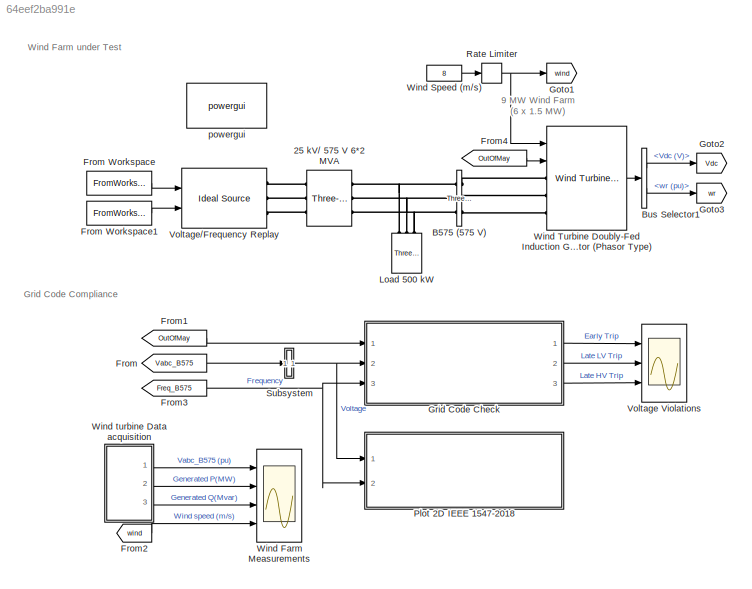
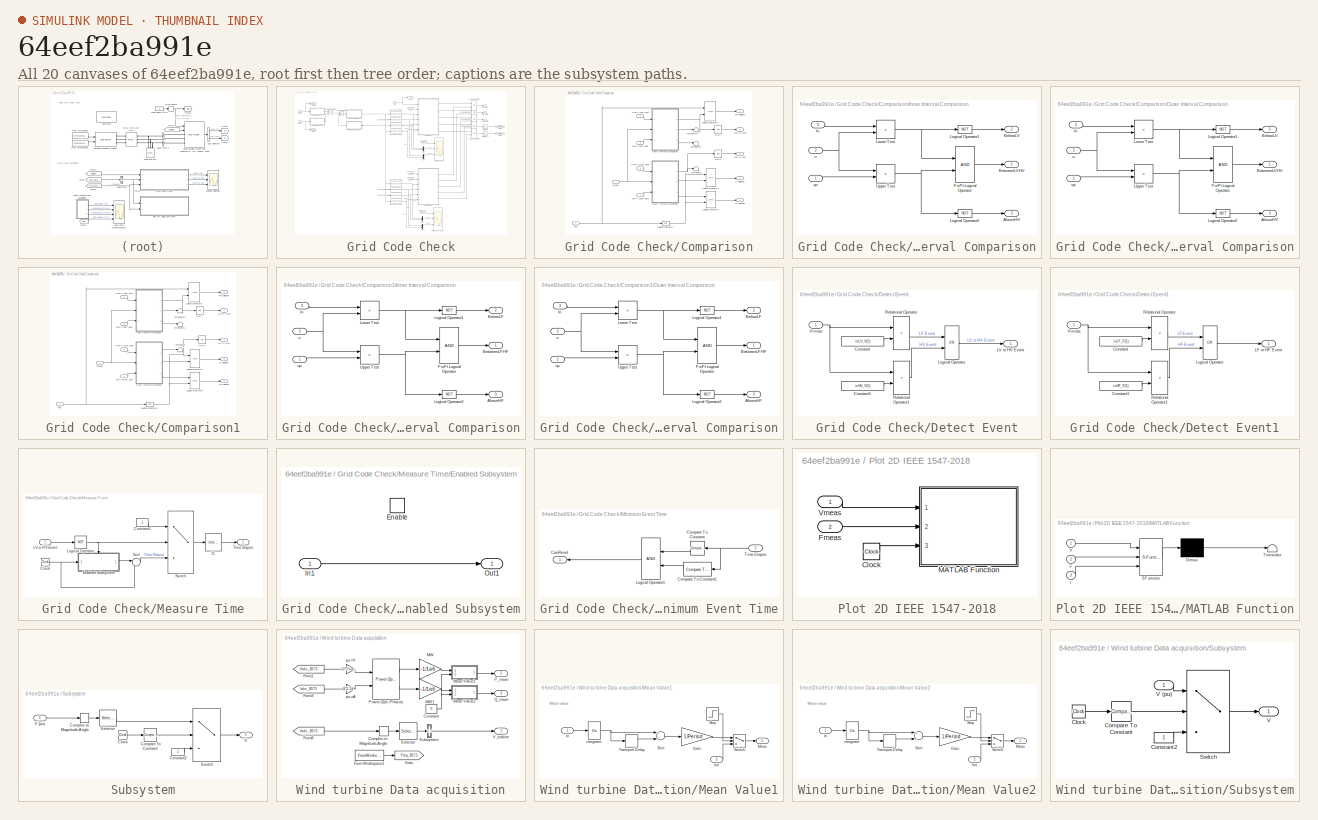
[diagram: thumbnail index - all 20 canvases of the model, root first then tree order]
MODEL slx_64eef2ba991e
KIND model
CONFIG AbsTol = 1e-3
CONFIG EnableMultiTasking = on
CONFIG FixedStep = auto
CONFIG InitFcn = i = 3;
CONFIG MaxStep = 1/60
CONFIG MinStep = auto
CONFIG PreLoadFcn = addpath('PMU_Events');\nload('PMU_ImportedData.mat')
CONFIG RelTol = 1e-4
CONFIG SampleTimeConstraint = Unconstrained
CONFIG Solver = ode23tb
CONFIG SolverName = ode23tb
CONFIG StartTime = 0.0
CONFIG StopTime = 50
BLOCK [Reference] 25 kV// 575 V 6*2 MVA  REF=powerlib/Elements/Three-Phase
Transformer
(Two Windings)
  AttributesFormatString = \n
  Ports = [0, 0, 0, 0, 0, 3, 3]
  SourceBlock = powerlib/Elements/Three-Phase\nTransformer\n(Two Windings)
  SourceProductBaseCode = PS
  SourceProductName = Simscape Electrical
  SourceType = Three-Phase Transformer (Two Windings)
BLOCK [Reference] B575 (575 V)  REF=powerlib/Measurements/Three-Phase
V-I Measurement
  Ports = [0, 0, 0, 0, 0, 3, 3]
  SourceBlock = powerlib/Measurements/Three-Phase\nV-I Measurement
  SourceProductBaseCode = PS
  SourceProductName = Simscape Electrical
  SourceType = Three-Phase VI Measurement
BLOCK [BusSelector] Bus Selector1
  OutputAsBus = off
  OutputSignals = Vdc (V),wr (pu)
  Ports = [1, 2]
BLOCK [From] From
  CloseFcn = tagdialog Close
  GotoTag = Vabc_B575
  TagVisibility = global
BLOCK [FromWorkspace] From Workspace
  OutputAfterFinalValue = Holding final value
  SampleTime = 0
  VariableName = [T{i} V{i}]
  ZeroCross = on
BLOCK [FromWorkspace] From Workspace1
  OutputAfterFinalValue = Holding final value
  SampleTime = 0
  VariableName = [T{i} F{i}]
  ZeroCross = on
BLOCK [From] From1
  GotoTag = OutOfMay
  TagVisibility = global
BLOCK [From] From2
  CloseFcn = tagdialog Close
  GotoTag = wind
  TagVisibility = global
BLOCK [From] From3
  GotoTag = Freq_B575
  TagVisibility = global
BLOCK [From] From4
  GotoTag = OutOfMay
  TagVisibility = global
BLOCK [Goto] Goto1
  GotoTag = wind
  TagVisibility = global
BLOCK [Goto] Goto2
  GotoTag = Vdc
  TagVisibility = global
BLOCK [Goto] Goto3
  GotoTag = wr
  TagVisibility = global
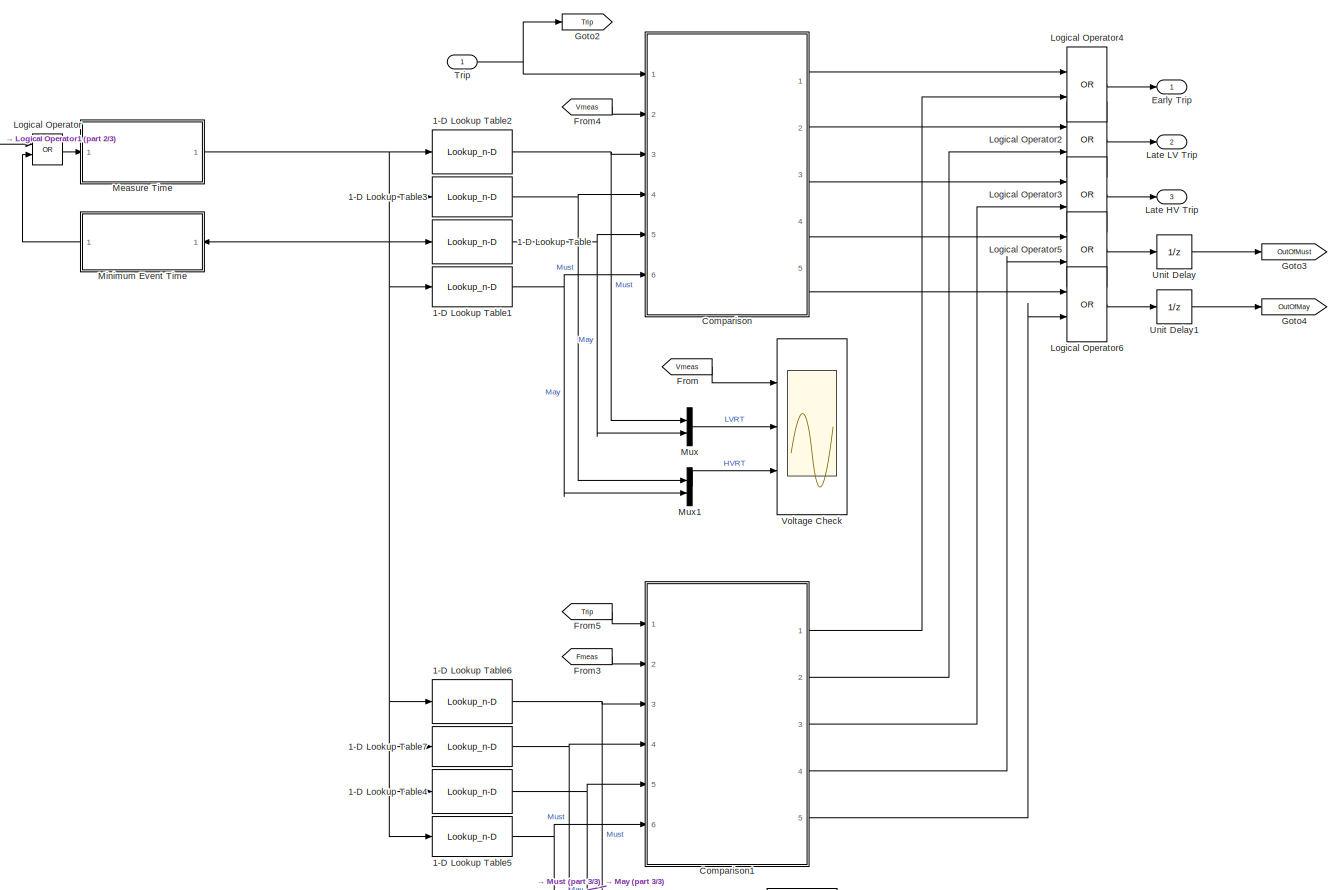
[diagram: Grid Code Check - part 1/3, most of the canvas]
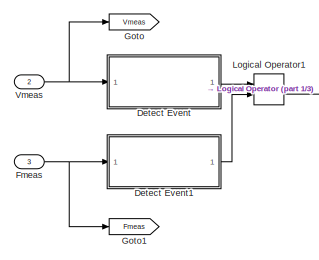
[diagram: Grid Code Check - part 2/3, top left region]
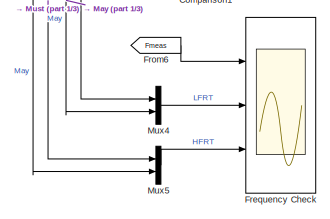
[diagram: Grid Code Check - part 3/3, bottom center region]
BLOCK [SubSystem] Grid Code Check
  Ports = [3, 3]
  RequestExecContextInheritance = off
BLOCK [Lookup_n-D] Grid Code Check/1-D Lookup Table
  BreakpointsForDimension1 = outLV_T
  ExtrapMethod = Clip
  InternalRulePriority = Speed
  NumberOfTableDimensions = 1
  Ports = [1, 1]
  RndMeth = Simplest
  Table = outLV_V
BLOCK [Lookup_n-D] Grid Code Check/1-D Lookup Table1
  BreakpointsForDimension1 = outHV_T
  ExtrapMethod = Clip
  InternalRulePriority = Speed
  NumberOfTableDimensions = 1
  Ports = [1, 1]
  RndMeth = Simplest
  Table = outHV_V
BLOCK [Lookup_n-D] Grid Code Check/1-D Lookup Table2
  BreakpointsForDimension1 = inLV_T
  ExtrapMethod = Clip
  InternalRulePriority = Speed
  NumberOfTableDimensions = 1
  Ports = [1, 1]
  RndMeth = Simplest
  Table = inLV_V
BLOCK [Lookup_n-D] Grid Code Check/1-D Lookup Table3
  BreakpointsForDimension1 = inHV_T
  ExtrapMethod = Clip
  InternalRulePriority = Speed
  NumberOfTableDimensions = 1
  Ports = [1, 1]
  RndMeth = Simplest
  Table = inHV_V
BLOCK [Lookup_n-D] Grid Code Check/1-D Lookup Table4
  BreakpointsForDimension1 = outLF_T
  ExtrapMethod = Clip
  InternalRulePriority = Speed
  NumberOfTableDimensions = 1
  Ports = [1, 1]
  RndMeth = Simplest
  Table = outLF_F
BLOCK [Lookup_n-D] Grid Code Check/1-D Lookup Table5
  BreakpointsForDimension1 = outHF_T
  ExtrapMethod = Clip
  InternalRulePriority = Speed
  NumberOfTableDimensions = 1
  Ports = [1, 1]
  RndMeth = Simplest
  Table = outHF_F
BLOCK [Lookup_n-D] Grid Code Check/1-D Lookup Table6
  BreakpointsForDimension1 = inLF_T
  ExtrapMethod = Clip
  InternalRulePriority = Speed
  NumberOfTableDimensions = 1
  Ports = [1, 1]
  RndMeth = Simplest
  Table = inLF_F
BLOCK [Lookup_n-D] Grid Code Check/1-D Lookup Table7
  BreakpointsForDimension1 = inHF_T
  ExtrapMethod = Clip
  InternalRulePriority = Speed
  NumberOfTableDimensions = 1
  Ports = [1, 1]
  RndMeth = Simplest
  Table = inHF_F
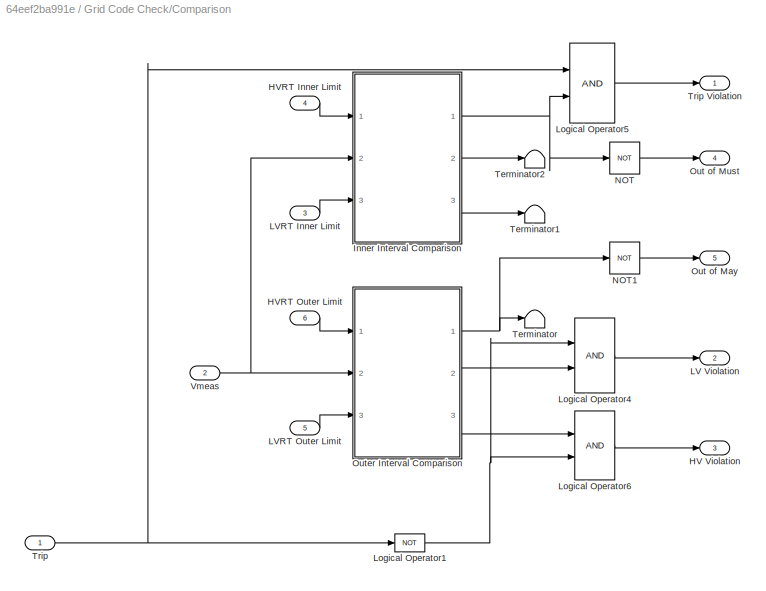
BLOCK [SubSystem] Grid Code Check/Comparison
  Ports = [6, 5]
  RequestExecContextInheritance = off
BLOCK [Outport] Grid Code Check/Comparison/HV Violation
  IconDisplay = Port number
  Port = 3
BLOCK [Inport] Grid Code Check/Comparison/HVRT Inner Limit
  IconDisplay = Port number
  Port = 4
BLOCK [Inport] Grid Code Check/Comparison/HVRT Outer Limit
  IconDisplay = Port number
  Port = 6
BLOCK [SubSystem] Grid Code Check/Comparison/Inner Interval Comparison
  Ports = [3, 3]
  RequestExecContextInheritance = off
BLOCK [Outport] Grid Code Check/Comparison/Inner Interval Comparison/AboveHV
  IconDisplay = Port number
  Port = 3
BLOCK [Outport] Grid Code Check/Comparison/Inner Interval Comparison/BelowLV
  IconDisplay = Port number
  Port = 2
BLOCK [Outport] Grid Code Check/Comparison/Inner Interval Comparison/BetweenLVHV
  IconDisplay = Port number
BLOCK [Logic] Grid Code Check/Comparison/Inner Interval Comparison/FixPt Logical Operator
  AllPortsSameDT = off
  OutDataTypeStr = boolean
  Ports = [2, 1]
BLOCK [Logic] Grid Code Check/Comparison/Inner Interval Comparison/Logical Operator1
  AllPortsSameDT = off
  Operator = NOT
  OutDataTypeStr = boolean
  Ports = [1, 1]
BLOCK [Logic] Grid Code Check/Comparison/Inner Interval Comparison/Logical Operator2
  AllPortsSameDT = off
  Operator = NOT
  OutDataTypeStr = boolean
  Ports = [1, 1]
BLOCK [RelationalOperator] Grid Code Check/Comparison/Inner Interval Comparison/Lower Test
  DisableCoverage = on
  InputSameDT = off
  Operator = <
  OutDataTypeStr = boolean
  Ports = [2, 1]
  ZeroCross = off
BLOCK [RelationalOperator] Grid Code Check/Comparison/Inner Interval Comparison/Upper Test
  DisableCoverage = on
  InputSameDT = off
  Operator = <
  OutDataTypeStr = boolean
  Ports = [2, 1]
  ZeroCross = off
BLOCK [Inport] Grid Code Check/Comparison/Inner Interval Comparison/lo
  IconDisplay = Port number
  Port = 3
BLOCK [Inport] Grid Code Check/Comparison/Inner Interval Comparison/u
  IconDisplay = Port number
  Port = 2
BLOCK [Inport] Grid Code Check/Comparison/Inner Interval Comparison/up
  IconDisplay = Port number
BLOCK [Outport] Grid Code Check/Comparison/LV Violation
  IconDisplay = Port number
  Port = 2
BLOCK [Inport] Grid Code Check/Comparison/LVRT Inner Limit
  IconDisplay = Port number
  Port = 3
BLOCK [Inport] Grid Code Check/Comparison/LVRT Outer Limit
  IconDisplay = Port number
  Port = 5
BLOCK [Logic] Grid Code Check/Comparison/Logical Operator1
  AllPortsSameDT = off
  Operator = NOT
  OutDataTypeStr = boolean
  Ports = [1, 1]
BLOCK [Logic] Grid Code Check/Comparison/Logical Operator4
  AllPortsSameDT = off
  OutDataTypeStr = boolean
  Ports = [2, 1]
BLOCK [Logic] Grid Code Check/Comparison/Logical Operator5
  AllPortsSameDT = off
  OutDataTypeStr = boolean
  Ports = [2, 1]
BLOCK [Logic] Grid Code Check/Comparison/Logical Operator6
  AllPortsSameDT = off
  OutDataTypeStr = boolean
  Ports = [2, 1]
BLOCK [Logic] Grid Code Check/Comparison/NOT
  AllPortsSameDT = off
  Operator = NOT
  OutDataTypeStr = boolean
  Ports = [1, 1]
BLOCK [Logic] Grid Code Check/Comparison/NOT1
  AllPortsSameDT = off
  Operator = NOT
  OutDataTypeStr = boolean
  Ports = [1, 1]
BLOCK [Outport] Grid Code Check/Comparison/Out of May
  IconDisplay = Port number
  Port = 5
BLOCK [Outport] Grid Code Check/Comparison/Out of Must
  IconDisplay = Port number
  Port = 4
BLOCK [SubSystem] Grid Code Check/Comparison/Outer Interval Comparison
  Ports = [3, 3]
  RequestExecContextInheritance = off
BLOCK [Outport] Grid Code Check/Comparison/Outer Interval Comparison/AboveHV
  IconDisplay = Port number
  Port = 3
BLOCK [Outport] Grid Code Check/Comparison/Outer Interval Comparison/BelowLV
  IconDisplay = Port number
  Port = 2
BLOCK [Outport] Grid Code Check/Comparison/Outer Interval Comparison/BetweenLVHV
  IconDisplay = Port number
BLOCK [Logic] Grid Code Check/Comparison/Outer Interval Comparison/FixPt Logical Operator
  AllPortsSameDT = off
  OutDataTypeStr = boolean
  Ports = [2, 1]
BLOCK [Logic] Grid Code Check/Comparison/Outer Interval Comparison/Logical Operator1
  AllPortsSameDT = off
  Operator = NOT
  OutDataTypeStr = boolean
  Ports = [1, 1]
BLOCK [Logic] Grid Code Check/Comparison/Outer Interval Comparison/Logical Operator2
  AllPortsSameDT = off
  Operator = NOT
  OutDataTypeStr = boolean
  Ports = [1, 1]
BLOCK [RelationalOperator] Grid Code Check/Comparison/Outer Interval Comparison/Lower Test
  DisableCoverage = on
  InputSameDT = off
  Operator = <
  OutDataTypeStr = boolean
  Ports = [2, 1]
  ZeroCross = off
BLOCK [RelationalOperator] Grid Code Check/Comparison/Outer Interval Comparison/Upper Test
  DisableCoverage = on
  InputSameDT = off
  Operator = <
  OutDataTypeStr = boolean
  Ports = [2, 1]
  ZeroCross = off
BLOCK [Inport] Grid Code Check/Comparison/Outer Interval Comparison/lo
  IconDisplay = Port number
  Port = 3
BLOCK [Inport] Grid Code Check/Comparison/Outer Interval Comparison/u
  IconDisplay = Port number
  Port = 2
BLOCK [Inport] Grid Code Check/Comparison/Outer Interval Comparison/up
  IconDisplay = Port number
BLOCK [Terminator] Grid Code Check/Comparison/Terminator
BLOCK [Terminator] Grid Code Check/Comparison/Terminator1
BLOCK [Terminator] Grid Code Check/Comparison/Terminator2
BLOCK [Inport] Grid Code Check/Comparison/Trip
  IconDisplay = Port number
BLOCK [Outport] Grid Code Check/Comparison/Trip Violation
  IconDisplay = Port number
BLOCK [Inport] Grid Code Check/Comparison/Vmeas
  IconDisplay = Port number
  Port = 2
BLOCK [SubSystem] Grid Code Check/Comparison1
  Ports = [6, 5]
  RequestExecContextInheritance = off
BLOCK [Inport] Grid Code Check/Comparison1/Fmeas
  IconDisplay = Port number
  Port = 2
BLOCK [Outport] Grid Code Check/Comparison1/HF Violation
  IconDisplay = Port number
  Port = 3
BLOCK [Inport] Grid Code Check/Comparison1/HFRT Inner Limit
  IconDisplay = Port number
  Port = 4
BLOCK [Inport] Grid Code Check/Comparison1/HFRT Outer Limit
  IconDisplay = Port number
  Port = 6
BLOCK [SubSystem] Grid Code Check/Comparison1/Inner Interval Comparison
  Ports = [3, 3]
  RequestExecContextInheritance = off
BLOCK [Outport] Grid Code Check/Comparison1/Inner Interval Comparison/AboveHF
  IconDisplay = Port number
  Port = 3
BLOCK [Outport] Grid Code Check/Comparison1/Inner Interval Comparison/BelowLF
  IconDisplay = Port number
  Port = 2
BLOCK [Outport] Grid Code Check/Comparison1/Inner Interval Comparison/BetweenLFHF
  IconDisplay = Port number
BLOCK [Logic] Grid Code Check/Comparison1/Inner Interval Comparison/FixPt Logical Operator
  AllPortsSameDT = off
  OutDataTypeStr = boolean
  Ports = [2, 1]
BLOCK [Logic] Grid Code Check/Comparison1/Inner Interval Comparison/Logical Operator1
  AllPortsSameDT = off
  Operator = NOT
  OutDataTypeStr = boolean
  Ports = [1, 1]
BLOCK [Logic] Grid Code Check/Comparison1/Inner Interval Comparison/Logical Operator2
  AllPortsSameDT = off
  Operator = NOT
  OutDataTypeStr = boolean
  Ports = [1, 1]
BLOCK [RelationalOperator] Grid Code Check/Comparison1/Inner Interval Comparison/Lower Test
  DisableCoverage = on
  InputSameDT = off
  Operator = <
  OutDataTypeStr = boolean
  Ports = [2, 1]
  ZeroCross = off
BLOCK [RelationalOperator] Grid Code Check/Comparison1/Inner Interval Comparison/Upper Test
  DisableCoverage = on
  InputSameDT = off
  Operator = <
  OutDataTypeStr = boolean
  Ports = [2, 1]
  ZeroCross = off
BLOCK [Inport] Grid Code Check/Comparison1/Inner Interval Comparison/lo
  IconDisplay = Port number
  Port = 3
BLOCK [Inport] Grid Code Check/Comparison1/Inner Interval Comparison/u
  IconDisplay = Port number
  Port = 2
BLOCK [Inport] Grid Code Check/Comparison1/Inner Interval Comparison/up
  IconDisplay = Port number
BLOCK [Outport] Grid Code Check/Comparison1/LF Violation
  IconDisplay = Port number
  Port = 2
BLOCK [Inport] Grid Code Check/Comparison1/LFRT Inner Limit
  IconDisplay = Port number
  Port = 3
BLOCK [Inport] Grid Code Check/Comparison1/LFRT Outer Limit
  IconDisplay = Port number
  Port = 5
BLOCK [Logic] Grid Code Check/Comparison1/Logical Operator1
  AllPortsSameDT = off
  Operator = NOT
  OutDataTypeStr = boolean
  Ports = [1, 1]
BLOCK [Logic] Grid Code Check/Comparison1/Logical Operator4
  AllPortsSameDT = off
  OutDataTypeStr = boolean
  Ports = [2, 1]
BLOCK [Logic] Grid Code Check/Comparison1/Logical Operator5
  AllPortsSameDT = off
  OutDataTypeStr = boolean
  Ports = [2, 1]
BLOCK [Logic] Grid Code Check/Comparison1/Logical Operator6
  AllPortsSameDT = off
  OutDataTypeStr = boolean
  Ports = [2, 1]
BLOCK [Logic] Grid Code Check/Comparison1/NOT
  AllPortsSameDT = off
  Operator = NOT
  OutDataTypeStr = boolean
  Ports = [1, 1]
BLOCK [Logic] Grid Code Check/Comparison1/NOT1
  AllPortsSameDT = off
  Operator = NOT
  OutDataTypeStr = boolean
  Ports = [1, 1]
BLOCK [Outport] Grid Code Check/Comparison1/Out of May
  IconDisplay = Port number
  Port = 5
BLOCK [Outport] Grid Code Check/Comparison1/Out of Must
  IconDisplay = Port number
  Port = 4
BLOCK [SubSystem] Grid Code Check/Comparison1/Outer Interval Comparison
  Ports = [3, 3]
  RequestExecContextInheritance = off
BLOCK [Outport] Grid Code Check/Comparison1/Outer Interval Comparison/AboveHF
  IconDisplay = Port number
  Port = 3
BLOCK [Outport] Grid Code Check/Comparison1/Outer Interval Comparison/BelowLF
  IconDisplay = Port number
  Port = 2
BLOCK [Outport] Grid Code Check/Comparison1/Outer Interval Comparison/BetweenLFHF
  IconDisplay = Port number
BLOCK [Logic] Grid Code Check/Comparison1/Outer Interval Comparison/FixPt Logical Operator
  AllPortsSameDT = off
  OutDataTypeStr = boolean
  Ports = [2, 1]
BLOCK [Logic] Grid Code Check/Comparison1/Outer Interval Comparison/Logical Operator1
  AllPortsSameDT = off
  Operator = NOT
  OutDataTypeStr = boolean
  Ports = [1, 1]
BLOCK [Logic] Grid Code Check/Comparison1/Outer Interval Comparison/Logical Operator2
  AllPortsSameDT = off
  Operator = NOT
  OutDataTypeStr = boolean
  Ports = [1, 1]
BLOCK [RelationalOperator] Grid Code Check/Comparison1/Outer Interval Comparison/Lower Test
  DisableCoverage = on
  InputSameDT = off
  Operator = <
  OutDataTypeStr = boolean
  Ports = [2, 1]
  ZeroCross = off
BLOCK [RelationalOperator] Grid Code Check/Comparison1/Outer Interval Comparison/Upper Test
  DisableCoverage = on
  InputSameDT = off
  Operator = <
  OutDataTypeStr = boolean
  Ports = [2, 1]
  ZeroCross = off
BLOCK [Inport] Grid Code Check/Comparison1/Outer Interval Comparison/lo
  IconDisplay = Port number
  Port = 3
BLOCK [Inport] Grid Code Check/Comparison1/Outer Interval Comparison/u
  IconDisplay = Port number
  Port = 2
BLOCK [Inport] Grid Code Check/Comparison1/Outer Interval Comparison/up
  IconDisplay = Port number
BLOCK [Terminator] Grid Code Check/Comparison1/Terminator
BLOCK [Terminator] Grid Code Check/Comparison1/Terminator1
BLOCK [Terminator] Grid Code Check/Comparison1/Terminator2
BLOCK [Inport] Grid Code Check/Comparison1/Trip
  IconDisplay = Port number
BLOCK [Outport] Grid Code Check/Comparison1/Trip Violation
  IconDisplay = Port number
BLOCK [SubSystem] Grid Code Check/Detect Event
  Ports = [1, 1]
  RequestExecContextInheritance = off
BLOCK [Constant] Grid Code Check/Detect Event/Constant
  Value = inLV_V(1)
BLOCK [Constant] Grid Code Check/Detect Event/Constant1
  Value = inHV_V(1)
BLOCK [Outport] Grid Code Check/Detect Event/LV or HV Event
  IconDisplay = Port number
BLOCK [Logic] Grid Code Check/Detect Event/Logical Operator
  AllPortsSameDT = off
  Operator = OR
  OutDataTypeStr = boolean
  Ports = [2, 1]
BLOCK [RelationalOperator] Grid Code Check/Detect Event/Relational Operator
  InputSameDT = off
  Operator = <
  OutDataTypeStr = boolean
  Ports = [2, 1]
  RndMeth = Simplest
BLOCK [RelationalOperator] Grid Code Check/Detect Event/Relational Operator1
  InputSameDT = off
  Operator = >
  OutDataTypeStr = boolean
  Ports = [2, 1]
  RndMeth = Simplest
BLOCK [Inport] Grid Code Check/Detect Event/Vmeas
  IconDisplay = Port number
BLOCK [SubSystem] Grid Code Check/Detect Event1
  Ports = [1, 1]
  RequestExecContextInheritance = off
BLOCK [Constant] Grid Code Check/Detect Event1/Constant
  Value = inLF_F(1)
BLOCK [Constant] Grid Code Check/Detect Event1/Constant1
  Value = inHF_F(1)
BLOCK [Outport] Grid Code Check/Detect Event1/LF or HF Event
  IconDisplay = Port number
BLOCK [Logic] Grid Code Check/Detect Event1/Logical Operator
  AllPortsSameDT = off
  Operator = OR
  OutDataTypeStr = boolean
  Ports = [2, 1]
BLOCK [RelationalOperator] Grid Code Check/Detect Event1/Relational Operator
  InputSameDT = off
  Operator = <
  OutDataTypeStr = boolean
  Ports = [2, 1]
  RndMeth = Simplest
BLOCK [RelationalOperator] Grid Code Check/Detect Event1/Relational Operator1
  InputSameDT = off
  Operator = >
  OutDataTypeStr = boolean
  Ports = [2, 1]
  RndMeth = Simplest
BLOCK [Inport] Grid Code Check/Detect Event1/Vmeas
  IconDisplay = Port number
BLOCK [Outport] Grid Code Check/Early Trip
  IconDisplay = Port number
BLOCK [Inport] Grid Code Check/Fmeas
  IconDisplay = Port number
  Port = 3
BLOCK [Scope] Grid Code Check/Frequency Check
  Floating = off
  NumInputPorts = 3
  Ports = [3]
  ScopeSpecificationString = Simulink.scopes.TimeScopeBlockCfg('CurrentConfiguration', extmgr.ConfigurationSet(extmgr.Configuration('Core','General UI',true),extmgr.Configuration('Core','Source UI',true),extmgr.Configuration('Sources','WiredSimulink',true,'DataLoggingVariableName','ScopeData3'),extmgr.Configuration('Visuals','Time Domain',true,'SerializedDisplays',{struct('MinYLimReal','48.00000','MaxYLimReal','68.00000','YLa...<+2333ch>
BLOCK [From] Grid Code Check/From
  GotoTag = Vmeas
BLOCK [From] Grid Code Check/From3
  GotoTag = Fmeas
BLOCK [From] Grid Code Check/From4
  GotoTag = Vmeas
BLOCK [From] Grid Code Check/From5
  GotoTag = Trip
BLOCK [From] Grid Code Check/From6
  GotoTag = Fmeas
BLOCK [Goto] Grid Code Check/Goto
  GotoTag = Vmeas
BLOCK [Goto] Grid Code Check/Goto1
  GotoTag = Fmeas
BLOCK [Goto] Grid Code Check/Goto2
  GotoTag = Trip
BLOCK [Goto] Grid Code Check/Goto3
  GotoTag = OutOfMust
  TagVisibility = global
BLOCK [Goto] Grid Code Check/Goto4
  GotoTag = OutOfMay
  TagVisibility = global
BLOCK [Outport] Grid Code Check/Late HV Trip
  IconDisplay = Port number
  Port = 3
BLOCK [Outport] Grid Code Check/Late LV Trip
  IconDisplay = Port number
  Port = 2
BLOCK [Logic] Grid Code Check/Logical Operator
  AllPortsSameDT = off
  Operator = OR
  OutDataTypeStr = boolean
  Ports = [2, 1]
BLOCK [Logic] Grid Code Check/Logical Operator1
  AllPortsSameDT = off
  Operator = OR
  OutDataTypeStr = boolean
  Ports = [2, 1]
BLOCK [Logic] Grid Code Check/Logical Operator2
  AllPortsSameDT = off
  Operator = OR
  OutDataTypeStr = boolean
  Ports = [2, 1]
BLOCK [Logic] Grid Code Check/Logical Operator3
  AllPortsSameDT = off
  Operator = OR
  OutDataTypeStr = boolean
  Ports = [2, 1]
BLOCK [Logic] Grid Code Check/Logical Operator4
  AllPortsSameDT = off
  Operator = OR
  OutDataTypeStr = boolean
  Ports = [2, 1]
BLOCK [Logic] Grid Code Check/Logical Operator5
  AllPortsSameDT = off
  Operator = OR
  OutDataTypeStr = boolean
  Ports = [2, 1]
BLOCK [Logic] Grid Code Check/Logical Operator6
  AllPortsSameDT = off
  Operator = OR
  OutDataTypeStr = boolean
  Ports = [2, 1]
BLOCK [SubSystem] Grid Code Check/Measure Time
  Ports = [1, 1]
  RequestExecContextInheritance = off
BLOCK [Clock] Grid Code Check/Measure Time/Clock
BLOCK [Constant] Grid Code Check/Measure Time/Constant1
  Value = -1
BLOCK [SubSystem] Grid Code Check/Measure Time/Enabled Subsystem
  Ports = [1, 1, 1]
  RequestExecContextInheritance = off
  TreatAsAtomicUnit = on
BLOCK [EnablePort] Grid Code Check/Measure Time/Enabled Subsystem/Enable
  Ports = []
BLOCK [Inport] Grid Code Check/Measure Time/Enabled Subsystem/In1
  IconDisplay = Port number
BLOCK [Outport] Grid Code Check/Measure Time/Enabled Subsystem/Out1
  IconDisplay = Port number
BLOCK [InitialCondition] Grid Code Check/Measure Time/IC
  Value = -1
BLOCK [Inport] Grid Code Check/Measure Time/LV or HV Event
  IconDisplay = Port number
BLOCK [Logic] Grid Code Check/Measure Time/Logical Operator
  AllPortsSameDT = off
  Operator = NOT
  OutDataTypeStr = boolean
  Ports = [1, 1]
BLOCK [Sum] Grid Code Check/Measure Time/Sum
  IconShape = round
  InputSameDT = off
  Inputs = |-+
  OutDataTypeStr = Inherit: Inherit via internal rule
  Ports = [2, 1]
  SaturateOnIntegerOverflow = off
BLOCK [Switch] Grid Code Check/Measure Time/Switch
  Criteria = u2 ~= 0
  InputSameDT = off
  SaturateOnIntegerOverflow = off
BLOCK [Outport] Grid Code Check/Measure Time/Time Elapse
  IconDisplay = Port number
BLOCK [SubSystem] Grid Code Check/Minimum Event Time
  Ports = [1, 1]
  RequestExecContextInheritance = off
BLOCK [Outport] Grid Code Check/Minimum Event Time/CanReset
  IconDisplay = Port number
BLOCK [Reference] Grid Code Check/Minimum Event Time/Compare To Constant  REF=simulink/Logic and Bit
Operations/Compare
To Constant
  Ports = [1, 1]
  SourceBlock = simulink/Logic and Bit\nOperations/Compare\nTo Constant
  SourceProductBaseCode = SL
  SourceProductName = Simulink
  SourceType = Compare To Constant
BLOCK [Reference] Grid Code Check/Minimum Event Time/Compare To Constant1  REF=simulink/Logic and Bit
Operations/Compare
To Constant
  Ports = [1, 1]
  SourceBlock = simulink/Logic and Bit\nOperations/Compare\nTo Constant
  SourceProductBaseCode = SL
  SourceProductName = Simulink
  SourceType = Compare To Constant
BLOCK [Logic] Grid Code Check/Minimum Event Time/Logical Operator1
  AllPortsSameDT = off
  OutDataTypeStr = boolean
  Ports = [2, 1]
BLOCK [Inport] Grid Code Check/Minimum Event Time/Time Elapse
  IconDisplay = Port number
BLOCK [Mux] Grid Code Check/Mux
  DisplayOption = bar
  Inputs = 2
  Ports = [2, 1]
BLOCK [Mux] Grid Code Check/Mux1
  DisplayOption = bar
  Inputs = 2
  Ports = [2, 1]
BLOCK [Mux] Grid Code Check/Mux4
  DisplayOption = bar
  Inputs = 2
  Ports = [2, 1]
BLOCK [Mux] Grid Code Check/Mux5
  DisplayOption = bar
  Inputs = 2
  Ports = [2, 1]
BLOCK [Inport] Grid Code Check/Trip
  IconDisplay = Port number
BLOCK [UnitDelay] Grid Code Check/Unit Delay
  InputProcessing = Elements as channels (sample based)
  SampleTime = -1
BLOCK [UnitDelay] Grid Code Check/Unit Delay1
  InputProcessing = Elements as channels (sample based)
  SampleTime = -1
BLOCK [Inport] Grid Code Check/Vmeas
  IconDisplay = Port number
  Port = 2
BLOCK [Scope] Grid Code Check/Voltage Check
  Floating = off
  NumInputPorts = 3
  Ports = [3]
  ScopeSpecificationString = Simulink.scopes.TimeScopeBlockCfg('CurrentConfiguration', extmgr.ConfigurationSet(extmgr.Configuration('Core','General UI',true),extmgr.Configuration('Core','Source UI',true),extmgr.Configuration('Sources','WiredSimulink',true,'DataLoggingVariableName','ScopeData1'),extmgr.Configuration('Visuals','Time Domain',true,'SerializedDisplays',{struct('MinYLimReal','-0.1625','MaxYLimReal','1.4625','YLabel...<+2321ch>
BLOCK [Reference] Load 500 kW  REF=powerlib/Elements/Three-Phase
Series RLC Load
  AttributesFormatString = \n
  Ports = [0, 0, 0, 0, 0, 3]
  SourceBlock = powerlib/Elements/Three-Phase\nSeries RLC Load
  SourceProductBaseCode = PS
  SourceProductName = Simscape Electrical
  SourceType = Three-Phase Series RLC Load
BLOCK [SubSystem] Plot 2D IEEE 1547-2018
  Ports = [2]
  RequestExecContextInheritance = off
BLOCK [Clock] Plot 2D IEEE 1547-2018/Clock
BLOCK [Inport] Plot 2D IEEE 1547-2018/Fmeas
  IconDisplay = Port number
  Port = 2
BLOCK [SubSystem] Plot 2D IEEE 1547-2018/MATLAB Function
  ErrorFcn = Stateflow.Translate.translate
  PermitHierarchicalResolution = ExplicitOnly
  Ports = [3]
  RequestExecContextInheritance = off
  SFBlockType = MATLAB Function
  SystemSampleTime = 0.1
  TreatAsAtomicUnit = on
BLOCK [Demux] Plot 2D IEEE 1547-2018/MATLAB Function/ Demux 
  Outputs = 1
  Ports = [1, 1]
BLOCK [S-Function] Plot 2D IEEE 1547-2018/MATLAB Function/ SFunction 
  EnableBusSupport = on
  FunctionName = sf_sfun
  PortCounts = [3 1]
  Ports = [3, 1]
  SFcnIsStateOwnerBlock = off
  SFunctionDeploymentMode = off
  Tag = Stateflow S-Function pmuReplay 1
BLOCK [Terminator] Plot 2D IEEE 1547-2018/MATLAB Function/ Terminator 
BLOCK [Inport] Plot 2D IEEE 1547-2018/MATLAB Function/F
  IconDisplay = Port number
  Port = 2
BLOCK [Inport] Plot 2D IEEE 1547-2018/MATLAB Function/V
  IconDisplay = Port number
BLOCK [Inport] Plot 2D IEEE 1547-2018/MATLAB Function/t
  IconDisplay = Port number
  Port = 3
BLOCK [Inport] Plot 2D IEEE 1547-2018/Vmeas
  IconDisplay = Port number
BLOCK [RateLimiter] Rate Limiter
BLOCK [SubSystem] Subsystem
  Ports = [1, 1]
  RequestExecContextInheritance = off
BLOCK [Clock] Subsystem/Clock
BLOCK [Reference] Subsystem/Compare To Constant  REF=simulink/Logic and Bit
Operations/Compare
To Constant
  Ports = [1, 1]
  SourceBlock = simulink/Logic and Bit\nOperations/Compare\nTo Constant
  SourceProductBaseCode = SL
  SourceProductName = Simulink
  SourceType = Compare To Constant
BLOCK [ComplexToMagnitudeAngle] Subsystem/Complex to Magnitude-Angle 
  Output = Magnitude
  Ports = [1, 1]
BLOCK [Constant] Subsystem/Constant2
BLOCK [Selector] Subsystem/Selector
  IndexOptions = Index vector (dialog)
  Indices = [1]
  InputPortWidth = 3
  OutputSizes = 1
  Ports = [1, 1]
BLOCK [Switch] Subsystem/Switch
  Criteria = u2 > Threshold
  InputSameDT = off
  SaturateOnIntegerOverflow = off
BLOCK [Outport] Subsystem/V
  IconDisplay = Port number
BLOCK [Inport] Subsystem/V (pu)
  IconDisplay = Port number
BLOCK [Scope] Voltage Violations
  Floating = off
  NumInputPorts = 3
  Ports = [3]
  ScopeSpecificationString = Simulink.scopes.TimeScopeBlockCfg('CurrentConfiguration', extmgr.ConfigurationSet(extmgr.Configuration('Core','General UI',true),extmgr.Configuration('Core','Source UI',true),extmgr.Configuration('Sources','WiredSimulink',true,'DataLoggingVariableName','ScopeData1'),extmgr.Configuration('Visuals','Time Domain',true,'SerializedDisplays',{struct('MinYLimReal','-1.00000','MaxYLimReal','1.00000','YLab...<+1445ch>
BLOCK [Reference] Voltage//Frequency Replay  REF=microgridLibrary/Ideal Source
  Ports = [2, 0, 0, 0, 0, 0, 3]
  SourceBlock = microgridLibrary/Ideal Source
  SourceType = Three-Phase Source
BLOCK [Scope] Wind Farm Measurements
  Floating = off
  NumInputPorts = 4
  Ports = [4]
  ScopeSpecificationString = Simulink.scopes.TimeScopeBlockCfg('CurrentConfiguration', extmgr.ConfigurationSet(extmgr.Configuration('Core','General UI',true),extmgr.Configuration('Core','Source UI',true),extmgr.Configuration('Sources','WiredSimulink',true,'DataLoggingVariableName','ScopeData1'),extmgr.Configuration('Visuals','Time Domain',true,'SerializedDisplays',{struct('MinYLimReal','0.50223','MaxYLimReal','1.10509','YLabe...<+3432ch>
BLOCK [Constant] Wind Speed (m//s)
  Value = 8
BLOCK [Reference] Wind Turbine Doubly-Fed Induction Generator (Phasor Type)  REF=re_lib/Wind Generation/Wind Turbine
Doubly-Fed Induction Generator
(Phasor Type)
  Ports = [2, 1, 0, 0, 0, 3]
  SourceBlock = re_lib/Wind Generation/Wind Turbine\nDoubly-Fed Induction Generator\n(Phasor Type)
  SourceProductBaseCode = PS
  SourceProductName = Simscape Electrical
  SourceType = Wind Turbine Doubly-Fed Induction Generator (Phasor Type)
BLOCK [SubSystem] Wind turbine Data acquisition
  Ports = [0, 3]
  RequestExecContextInheritance = off
BLOCK [ComplexToMagnitudeAngle] Wind turbine Data acquisition/Complex to Magnitude-Angle 
  Output = Magnitude
  Ports = [1, 1]
BLOCK [Constant] Wind turbine Data acquisition/Constant
  Value = 0
BLOCK [FromWorkspace] Wind turbine Data acquisition/From Workspace1
  OutputAfterFinalValue = Holding final value
  SampleTime = 0
  VariableName = [T{i} F{i}]
  ZeroCross = on
BLOCK [From] Wind turbine Data acquisition/From1
  CloseFcn = tagdialog Close
  GotoTag = Vabc_B575
  TagVisibility = global
BLOCK [From] Wind turbine Data acquisition/From3
  CloseFcn = tagdialog Close
  GotoTag = Iabc_B575
  TagVisibility = global
BLOCK [From] Wind turbine Data acquisition/From8
  CloseFcn = tagdialog Close
  GotoTag = Vabc_B575
  TagVisibility = global
BLOCK [Goto] Wind turbine Data acquisition/Goto
  GotoTag = Freq_B575
  TagVisibility = global
BLOCK [Gain] Wind turbine Data acquisition/MW
  Gain = -1/1e6
BLOCK [Gain] Wind turbine Data acquisition/MW1
  Gain = -1/1e6
BLOCK [SubSystem] Wind turbine Data acquisition/Mean Value1
  Ports = [2, 1]
  RequestExecContextInheritance = off
BLOCK [Gain] Wind turbine Data acquisition/Mean Value1/Gain
  Gain = 1/Period
BLOCK [Inport] Wind turbine Data acquisition/Mean Value1/In
  IconDisplay = Port number
BLOCK [Inport] Wind turbine Data acquisition/Mean Value1/Init
  IconDisplay = Port number
  Port = 2
BLOCK [Outport] Wind turbine Data acquisition/Mean Value1/Mean
  IconDisplay = Port number
BLOCK [Step] Wind turbine Data acquisition/Mean Value1/Step
  SampleTime = 0
  Time = Period+eps
BLOCK [Sum] Wind turbine Data acquisition/Mean Value1/Sum
  Inputs = +-
  Ports = [2, 1]
BLOCK [Switch] Wind turbine Data acquisition/Mean Value1/Switch
  InputSameDT = off
  Threshold = 0.5
BLOCK [TransportDelay] Wind turbine Data acquisition/Mean Value1/Transport Delay
  DelayTime = Period
  Ports = [1, 1]
BLOCK [Integrator] Wind turbine Data acquisition/Mean Value1/integrator
  Ports = [1, 1]
BLOCK [SubSystem] Wind turbine Data acquisition/Mean Value2
  Ports = [2, 1]
  RequestExecContextInheritance = off
BLOCK [Gain] Wind turbine Data acquisition/Mean Value2/Gain
  Gain = 1/Period
BLOCK [Inport] Wind turbine Data acquisition/Mean Value2/In
  IconDisplay = Port number
BLOCK [Inport] Wind turbine Data acquisition/Mean Value2/Init
  IconDisplay = Port number
  Port = 2
BLOCK [Outport] Wind turbine Data acquisition/Mean Value2/Mean
  IconDisplay = Port number
BLOCK [Step] Wind turbine Data acquisition/Mean Value2/Step
  SampleTime = 0
  Time = Period+eps
BLOCK [Sum] Wind turbine Data acquisition/Mean Value2/Sum
  Inputs = +-
  Ports = [2, 1]
BLOCK [Switch] Wind turbine Data acquisition/Mean Value2/Switch
  InputSameDT = off
  Threshold = 0.5
BLOCK [TransportDelay] Wind turbine Data acquisition/Mean Value2/Transport Delay
  DelayTime = Period
  Ports = [1, 1]
BLOCK [Integrator] Wind turbine Data acquisition/Mean Value2/integrator
  Ports = [1, 1]
BLOCK [Outport] Wind turbine Data acquisition/P_mean
  IconDisplay = Port number
  Port = 2
BLOCK [Reference] Wind turbine Data acquisition/Power (3ph, Phasor)  REF=powerlib_meascontrol/Measurements/Power
(3ph, Phasor)
  Ports = [2, 2]
  SourceBlock = powerlib_meascontrol/Measurements/Power\n(3ph, Phasor)
  SourceProductBaseCode = PS
  SourceProductName = Simscape Electrical
  SourceType = Power (3ph, Phasor)
BLOCK [Outport] Wind turbine Data acquisition/Q_mean
  IconDisplay = Port number
  Port = 3
BLOCK [Selector] Wind turbine Data acquisition/Selector
  IndexOptions = Index vector (dialog)
  Indices = [1]
  InputPortWidth = 3
  OutputSizes = 1
  Ports = [1, 1]
BLOCK [SubSystem] Wind turbine Data acquisition/Subsystem
  Ports = [1, 1]
  RequestExecContextInheritance = off
BLOCK [Clock] Wind turbine Data acquisition/Subsystem/Clock
BLOCK [Reference] Wind turbine Data acquisition/Subsystem/Compare To Constant  REF=simulink/Logic and Bit
Operations/Compare
To Constant
  Ports = [1, 1]
  SourceBlock = simulink/Logic and Bit\nOperations/Compare\nTo Constant
  SourceProductBaseCode = SL
  SourceProductName = Simulink
  SourceType = Compare To Constant
BLOCK [Constant] Wind turbine Data acquisition/Subsystem/Constant2
BLOCK [Switch] Wind turbine Data acquisition/Subsystem/Switch
  Criteria = u2 > Threshold
  InputSameDT = off
  SaturateOnIntegerOverflow = off
BLOCK [Outport] Wind turbine Data acquisition/Subsystem/V
  IconDisplay = Port number
BLOCK [Inport] Wind turbine Data acquisition/Subsystem/V (pu)
  IconDisplay = Port number
BLOCK [Outport] Wind turbine Data acquisition/V_turbine
  IconDisplay = Port number
BLOCK [Gain] Wind turbine Data acquisition/pu->A
  Gain = (6*1.5e6)/sqrt(3)/575*sqrt(2)
BLOCK [Gain] Wind turbine Data acquisition/pu->V
  Gain = 575*sqrt(2)/sqrt(3)
BLOCK [Reference] powergui  REF=powerlib/powergui
  Ports = []
  Priority = 2
  SourceBlock = powerlib/powergui
  SourceProductBaseCode = PS
  SourceProductName = Simscape Power Systems
  SourceType = PSB option menu block
ANNOTATION (root): 9 MW Wind Farm (6 x 1.5 MW)
ANNOTATION (root): Grid Code Compliance
ANNOTATION (root): Wind Farm under Test
ANNOTATION Wind turbine Data acquisition/Mean Value1: Mean value
ANNOTATION Wind turbine Data acquisition/Mean Value2: Mean value
LINE Bus Selector1:1 -> Goto2:1
LINE Bus Selector1:2 -> Goto3:1
LINE From Workspace1:1 -> Voltage//Frequency Replay:2
LINE From Workspace:1 -> Voltage//Frequency Replay:1
LINE From1:1 -> Grid Code Check:1
LINE From2:1 -> Wind Farm Measurements:4
NET From3:1 -> Grid Code Check:3, Plot 2D IEEE 1547-2018:2
LINE From4:1 -> Wind Turbine Doubly-Fed Induction Generator (Phasor Type):2
LINE From:1 -> Subsystem:1
NET Grid Code Check/1-D Lookup Table1:1 -> Grid Code Check/Comparison:6, Grid Code Check/Mux1:2
NET Grid Code Check/1-D Lookup Table2:1 -> Grid Code Check/Comparison:3, Grid Code Check/Mux:1
NET Grid Code Check/1-D Lookup Table3:1 -> Grid Code Check/Comparison:4, Grid Code Check/Mux1:1
NET Grid Code Check/1-D Lookup Table4:1 -> Grid Code Check/Comparison1:5, Grid Code Check/Mux4:2
NET Grid Code Check/1-D Lookup Table5:1 -> Grid Code Check/Comparison1:6, Grid Code Check/Mux5:2
NET Grid Code Check/1-D Lookup Table6:1 -> Grid Code Check/Comparison1:3, Grid Code Check/Mux4:1
NET Grid Code Check/1-D Lookup Table7:1 -> Grid Code Check/Comparison1:4, Grid Code Check/Mux5:1
NET Grid Code Check/1-D Lookup Table:1 -> Grid Code Check/Comparison:5, Grid Code Check/Mux:2
LINE Grid Code Check/Comparison/HVRT Inner Limit:1 -> Grid Code Check/Comparison/Inner Interval Comparison:1
LINE Grid Code Check/Comparison/HVRT Outer Limit:1 -> Grid Code Check/Comparison/Outer Interval Comparison:1
LINE Grid Code Check/Comparison/Inner Interval Comparison/FixPt Logical Operator:1 -> Grid Code Check/Comparison/Inner Interval Comparison/BetweenLVHV:1
LINE Grid Code Check/Comparison/Inner Interval Comparison/Logical Operator1:1 -> Grid Code Check/Comparison/Inner Interval Comparison/BelowLV:1
LINE Grid Code Check/Comparison/Inner Interval Comparison/Logical Operator2:1 -> Grid Code Check/Comparison/Inner Interval Comparison/AboveHV:1
NET Grid Code Check/Comparison/Inner Interval Comparison/Lower Test:1 -> Grid Code Check/Comparison/Inner Interval Comparison/FixPt Logical Operator:1, Grid Code Check/Comparison/Inner Interval Comparison/Logical Operator1:1
NET Grid Code Check/Comparison/Inner Interval Comparison/Upper Test:1 -> Grid Code Check/Comparison/Inner Interval Comparison/FixPt Logical Operator:2, Grid Code Check/Comparison/Inner Interval Comparison/Logical Operator2:1
LINE Grid Code Check/Comparison/Inner Interval Comparison/lo:1 -> Grid Code Check/Comparison/Inner Interval Comparison/Lower Test:1
NET Grid Code Check/Comparison/Inner Interval Comparison/u:1 -> Grid Code Check/Comparison/Inner Interval Comparison/Lower Test:2, Grid Code Check/Comparison/Inner Interval Comparison/Upper Test:1
LINE Grid Code Check/Comparison/Inner Interval Comparison/up:1 -> Grid Code Check/Comparison/Inner Interval Comparison/Upper Test:2
NET Grid Code Check/Comparison/Inner Interval Comparison:1 -> Grid Code Check/Comparison/Logical Operator5:2, Grid Code Check/Comparison/NOT:1
LINE Grid Code Check/Comparison/Inner Interval Comparison:2 -> Grid Code Check/Comparison/Terminator2:1
LINE Grid Code Check/Comparison/Inner Interval Comparison:3 -> Grid Code Check/Comparison/Terminator1:1
LINE Grid Code Check/Comparison/LVRT Inner Limit:1 -> Grid Code Check/Comparison/Inner Interval Comparison:3
LINE Grid Code Check/Comparison/LVRT Outer Limit:1 -> Grid Code Check/Comparison/Outer Interval Comparison:3
NET Grid Code Check/Comparison/Logical Operator1:1 -> Grid Code Check/Comparison/Logical Operator4:1, Grid Code Check/Comparison/Logical Operator6:2
LINE Grid Code Check/Comparison/Logical Operator4:1 -> Grid Code Check/Comparison/LV Violation:1
LINE Grid Code Check/Comparison/Logical Operator5:1 -> Grid Code Check/Comparison/Trip Violation:1
LINE Grid Code Check/Comparison/Logical Operator6:1 -> Grid Code Check/Comparison/HV Violation:1
LINE Grid Code Check/Comparison/NOT1:1 -> Grid Code Check/Comparison/Out of May:1
LINE Grid Code Check/Comparison/NOT:1 -> Grid Code Check/Comparison/Out of Must:1
LINE Grid Code Check/Comparison/Outer Interval Comparison/FixPt Logical Operator:1 -> Grid Code Check/Comparison/Outer Interval Comparison/BetweenLVHV:1
LINE Grid Code Check/Comparison/Outer Interval Comparison/Logical Operator1:1 -> Grid Code Check/Comparison/Outer Interval Comparison/BelowLV:1
LINE Grid Code Check/Comparison/Outer Interval Comparison/Logical Operator2:1 -> Grid Code Check/Comparison/Outer Interval Comparison/AboveHV:1
NET Grid Code Check/Comparison/Outer Interval Comparison/Lower Test:1 -> Grid Code Check/Comparison/Outer Interval Comparison/FixPt Logical Operator:1, Grid Code Check/Comparison/Outer Interval Comparison/Logical Operator1:1
NET Grid Code Check/Comparison/Outer Interval Comparison/Upper Test:1 -> Grid Code Check/Comparison/Outer Interval Comparison/FixPt Logical Operator:2, Grid Code Check/Comparison/Outer Interval Comparison/Logical Operator2:1
LINE Grid Code Check/Comparison/Outer Interval Comparison/lo:1 -> Grid Code Check/Comparison/Outer Interval Comparison/Lower Test:1
NET Grid Code Check/Comparison/Outer Interval Comparison/u:1 -> Grid Code Check/Comparison/Outer Interval Comparison/Lower Test:2, Grid Code Check/Comparison/Outer Interval Comparison/Upper Test:1
LINE Grid Code Check/Comparison/Outer Interval Comparison/up:1 -> Grid Code Check/Comparison/Outer Interval Comparison/Upper Test:2
NET Grid Code Check/Comparison/Outer Interval Comparison:1 -> Grid Code Check/Comparison/NOT1:1, Grid Code Check/Comparison/Terminator:1
LINE Grid Code Check/Comparison/Outer Interval Comparison:2 -> Grid Code Check/Comparison/Logical Operator4:2
LINE Grid Code Check/Comparison/Outer Interval Comparison:3 -> Grid Code Check/Comparison/Logical Operator6:1
NET Grid Code Check/Comparison/Trip:1 -> Grid Code Check/Comparison/Logical Operator1:1, Grid Code Check/Comparison/Logical Operator5:1
NET Grid Code Check/Comparison/Vmeas:1 -> Grid Code Check/Comparison/Inner Interval Comparison:2, Grid Code Check/Comparison/Outer Interval Comparison:2
NET Grid Code Check/Comparison1/Fmeas:1 -> Grid Code Check/Comparison1/Inner Interval Comparison:2, Grid Code Check/Comparison1/Outer Interval Comparison:2
LINE Grid Code Check/Comparison1/HFRT Inner Limit:1 -> Grid Code Check/Comparison1/Inner Interval Comparison:1
LINE Grid Code Check/Comparison1/HFRT Outer Limit:1 -> Grid Code Check/Comparison1/Outer Interval Comparison:1
LINE Grid Code Check/Comparison1/Inner Interval Comparison/FixPt Logical Operator:1 -> Grid Code Check/Comparison1/Inner Interval Comparison/BetweenLFHF:1
LINE Grid Code Check/Comparison1/Inner Interval Comparison/Logical Operator1:1 -> Grid Code Check/Comparison1/Inner Interval Comparison/BelowLF:1
LINE Grid Code Check/Comparison1/Inner Interval Comparison/Logical Operator2:1 -> Grid Code Check/Comparison1/Inner Interval Comparison/AboveHF:1
NET Grid Code Check/Comparison1/Inner Interval Comparison/Lower Test:1 -> Grid Code Check/Comparison1/Inner Interval Comparison/FixPt Logical Operator:1, Grid Code Check/Comparison1/Inner Interval Comparison/Logical Operator1:1
NET Grid Code Check/Comparison1/Inner Interval Comparison/Upper Test:1 -> Grid Code Check/Comparison1/Inner Interval Comparison/FixPt Logical Operator:2, Grid Code Check/Comparison1/Inner Interval Comparison/Logical Operator2:1
LINE Grid Code Check/Comparison1/Inner Interval Comparison/lo:1 -> Grid Code Check/Comparison1/Inner Interval Comparison/Lower Test:1
NET Grid Code Check/Comparison1/Inner Interval Comparison/u:1 -> Grid Code Check/Comparison1/Inner Interval Comparison/Lower Test:2, Grid Code Check/Comparison1/Inner Interval Comparison/Upper Test:1
LINE Grid Code Check/Comparison1/Inner Interval Comparison/up:1 -> Grid Code Check/Comparison1/Inner Interval Comparison/Upper Test:2
NET Grid Code Check/Comparison1/Inner Interval Comparison:1 -> Grid Code Check/Comparison1/Logical Operator5:2, Grid Code Check/Comparison1/NOT:1
LINE Grid Code Check/Comparison1/Inner Interval Comparison:2 -> Grid Code Check/Comparison1/Terminator2:1
LINE Grid Code Check/Comparison1/Inner Interval Comparison:3 -> Grid Code Check/Comparison1/Terminator1:1
LINE Grid Code Check/Comparison1/LFRT Inner Limit:1 -> Grid Code Check/Comparison1/Inner Interval Comparison:3
LINE Grid Code Check/Comparison1/LFRT Outer Limit:1 -> Grid Code Check/Comparison1/Outer Interval Comparison:3
NET Grid Code Check/Comparison1/Logical Operator1:1 -> Grid Code Check/Comparison1/Logical Operator4:1, Grid Code Check/Comparison1/Logical Operator6:2, Grid Code Check/Comparison1/NOT1:1
LINE Grid Code Check/Comparison1/Logical Operator4:1 -> Grid Code Check/Comparison1/LF Violation:1
LINE Grid Code Check/Comparison1/Logical Operator5:1 -> Grid Code Check/Comparison1/Trip Violation:1
LINE Grid Code Check/Comparison1/Logical Operator6:1 -> Grid Code Check/Comparison1/HF Violation:1
LINE Grid Code Check/Comparison1/NOT1:1 -> Grid Code Check/Comparison1/Out of May:1
LINE Grid Code Check/Comparison1/NOT:1 -> Grid Code Check/Comparison1/Out of Must:1
LINE Grid Code Check/Comparison1/Outer Interval Comparison/FixPt Logical Operator:1 -> Grid Code Check/Comparison1/Outer Interval Comparison/BetweenLFHF:1
LINE Grid Code Check/Comparison1/Outer Interval Comparison/Logical Operator1:1 -> Grid Code Check/Comparison1/Outer Interval Comparison/BelowLF:1
LINE Grid Code Check/Comparison1/Outer Interval Comparison/Logical Operator2:1 -> Grid Code Check/Comparison1/Outer Interval Comparison/AboveHF:1
NET Grid Code Check/Comparison1/Outer Interval Comparison/Lower Test:1 -> Grid Code Check/Comparison1/Outer Interval Comparison/FixPt Logical Operator:1, Grid Code Check/Comparison1/Outer Interval Comparison/Logical Operator1:1
NET Grid Code Check/Comparison1/Outer Interval Comparison/Upper Test:1 -> Grid Code Check/Comparison1/Outer Interval Comparison/FixPt Logical Operator:2, Grid Code Check/Comparison1/Outer Interval Comparison/Logical Operator2:1
LINE Grid Code Check/Comparison1/Outer Interval Comparison/lo:1 -> Grid Code Check/Comparison1/Outer Interval Comparison/Lower Test:1
NET Grid Code Check/Comparison1/Outer Interval Comparison/u:1 -> Grid Code Check/Comparison1/Outer Interval Comparison/Lower Test:2, Grid Code Check/Comparison1/Outer Interval Comparison/Upper Test:1
LINE Grid Code Check/Comparison1/Outer Interval Comparison/up:1 -> Grid Code Check/Comparison1/Outer Interval Comparison/Upper Test:2
LINE Grid Code Check/Comparison1/Outer Interval Comparison:1 -> Grid Code Check/Comparison1/Terminator:1
LINE Grid Code Check/Comparison1/Outer Interval Comparison:2 -> Grid Code Check/Comparison1/Logical Operator4:2
LINE Grid Code Check/Comparison1/Outer Interval Comparison:3 -> Grid Code Check/Comparison1/Logical Operator6:1
NET Grid Code Check/Comparison1/Trip:1 -> Grid Code Check/Comparison1/Logical Operator1:1, Grid Code Check/Comparison1/Logical Operator5:1
LINE Grid Code Check/Comparison1:1 -> Grid Code Check/Logical Operator4:2
LINE Grid Code Check/Comparison1:2 -> Grid Code Check/Logical Operator2:2
LINE Grid Code Check/Comparison1:3 -> Grid Code Check/Logical Operator3:2
LINE Grid Code Check/Comparison1:4 -> Grid Code Check/Logical Operator5:2
LINE Grid Code Check/Comparison1:5 -> Grid Code Check/Logical Operator6:2
LINE Grid Code Check/Comparison:1 -> Grid Code Check/Logical Operator4:1
LINE Grid Code Check/Comparison:2 -> Grid Code Check/Logical Operator2:1
LINE Grid Code Check/Comparison:3 -> Grid Code Check/Logical Operator3:1
LINE Grid Code Check/Comparison:4 -> Grid Code Check/Logical Operator5:1
LINE Grid Code Check/Comparison:5 -> Grid Code Check/Logical Operator6:1
LINE Grid Code Check/Detect Event/Constant1:1 -> Grid Code Check/Detect Event/Relational Operator1:2
LINE Grid Code Check/Detect Event/Constant:1 -> Grid Code Check/Detect Event/Relational Operator:2
LINE Grid Code Check/Detect Event/Logical Operator:1 -> Grid Code Check/Detect Event/LV or HV Event:1
LINE Grid Code Check/Detect Event/Relational Operator1:1 -> Grid Code Check/Detect Event/Logical Operator:2
LINE Grid Code Check/Detect Event/Relational Operator:1 -> Grid Code Check/Detect Event/Logical Operator:1
NET Grid Code Check/Detect Event/Vmeas:1 -> Grid Code Check/Detect Event/Relational Operator1:1, Grid Code Check/Detect Event/Relational Operator:1
LINE Grid Code Check/Detect Event1/Constant1:1 -> Grid Code Check/Detect Event1/Relational Operator1:2
LINE Grid Code Check/Detect Event1/Constant:1 -> Grid Code Check/Detect Event1/Relational Operator:2
LINE Grid Code Check/Detect Event1/Logical Operator:1 -> Grid Code Check/Detect Event1/LF or HF Event:1
LINE Grid Code Check/Detect Event1/Relational Operator1:1 -> Grid Code Check/Detect Event1/Logical Operator:2
LINE Grid Code Check/Detect Event1/Relational Operator:1 -> Grid Code Check/Detect Event1/Logical Operator:1
NET Grid Code Check/Detect Event1/Vmeas:1 -> Grid Code Check/Detect Event1/Relational Operator1:1, Grid Code Check/Detect Event1/Relational Operator:1
LINE Grid Code Check/Detect Event1:1 -> Grid Code Check/Logical Operator1:2
LINE Grid Code Check/Detect Event:1 -> Grid Code Check/Logical Operator1:1
NET Grid Code Check/Fmeas:1 -> Grid Code Check/Detect Event1:1, Grid Code Check/Goto1:1
LINE Grid Code Check/From3:1 -> Grid Code Check/Comparison1:2
LINE Grid Code Check/From4:1 -> Grid Code Check/Comparison:2
LINE Grid Code Check/From5:1 -> Grid Code Check/Comparison1:1
LINE Grid Code Check/From6:1 -> Grid Code Check/Frequency Check:1
LINE Grid Code Check/From:1 -> Grid Code Check/Voltage Check:1
LINE Grid Code Check/Logical Operator1:1 -> Grid Code Check/Logical Operator:1
LINE Grid Code Check/Logical Operator2:1 -> Grid Code Check/Late LV Trip:1
LINE Grid Code Check/Logical Operator3:1 -> Grid Code Check/Late HV Trip:1
LINE Grid Code Check/Logical Operator4:1 -> Grid Code Check/Early Trip:1
LINE Grid Code Check/Logical Operator5:1 -> Grid Code Check/Unit Delay:1
LINE Grid Code Check/Logical Operator6:1 -> Grid Code Check/Unit Delay1:1
LINE Grid Code Check/Logical Operator:1 -> Grid Code Check/Measure Time:1
NET Grid Code Check/Measure Time/Clock:1 -> Grid Code Check/Measure Time/Enabled Subsystem:1, Grid Code Check/Measure Time/Sum:2
LINE Grid Code Check/Measure Time/Constant1:1 -> Grid Code Check/Measure Time/Switch:1
LINE Grid Code Check/Measure Time/Enabled Subsystem/In1:1 -> Grid Code Check/Measure Time/Enabled Subsystem/Out1:1
LINE Grid Code Check/Measure Time/Enabled Subsystem:1 -> Grid Code Check/Measure Time/Sum:1
LINE Grid Code Check/Measure Time/IC:1 -> Grid Code Check/Measure Time/Time Elapse:1
LINE Grid Code Check/Measure Time/LV or HV Event:1 -> Grid Code Check/Measure Time/Logical Operator:1
NET Grid Code Check/Measure Time/Logical Operator:1 -> Grid Code Check/Measure Time/Enabled Subsystem:enable, Grid Code Check/Measure Time/Switch:2
LINE Grid Code Check/Measure Time/Sum:1 -> Grid Code Check/Measure Time/Switch:3
LINE Grid Code Check/Measure Time/Switch:1 -> Grid Code Check/Measure Time/IC:1
NET Grid Code Check/Measure Time:1 -> Grid Code Check/1-D Lookup Table1:1, Grid Code Check/1-D Lookup Table2:1, Grid Code Check/1-D Lookup Table3:1, Grid Code Check/1-D Lookup Table4:1, Grid Code Check/1-D Lookup Table5:1, Grid Code Check/1-D Lookup Table6:1, Grid Code Check/1-D Lookup Table7:1, Grid Code Check/1-D Lookup Table:1, Grid Code Check/Minimum Event Time:1
LINE Grid Code Check/Minimum Event Time/Compare To Constant1:1 -> Grid Code Check/Minimum Event Time/Logical Operator1:2
LINE Grid Code Check/Minimum Event Time/Compare To Constant:1 -> Grid Code Check/Minimum Event Time/Logical Operator1:1
LINE Grid Code Check/Minimum Event Time/Logical Operator1:1 -> Grid Code Check/Minimum Event Time/CanReset:1
NET Grid Code Check/Minimum Event Time/Time Elapse:1 -> Grid Code Check/Minimum Event Time/Compare To Constant1:1, Grid Code Check/Minimum Event Time/Compare To Constant:1
LINE Grid Code Check/Minimum Event Time:1 -> Grid Code Check/Logical Operator:2
LINE Grid Code Check/Mux1:1 -> Grid Code Check/Voltage Check:3
LINE Grid Code Check/Mux4:1 -> Grid Code Check/Frequency Check:2
LINE Grid Code Check/Mux5:1 -> Grid Code Check/Frequency Check:3
LINE Grid Code Check/Mux:1 -> Grid Code Check/Voltage Check:2
NET Grid Code Check/Trip:1 -> Grid Code Check/Comparison:1, Grid Code Check/Goto2:1
LINE Grid Code Check/Unit Delay1:1 -> Grid Code Check/Goto4:1
LINE Grid Code Check/Unit Delay:1 -> Grid Code Check/Goto3:1
NET Grid Code Check/Vmeas:1 -> Grid Code Check/Detect Event:1, Grid Code Check/Goto:1
LINE Grid Code Check:1 -> Voltage Violations:1
LINE Grid Code Check:2 -> Voltage Violations:2
LINE Grid Code Check:3 -> Voltage Violations:3
LINE Plot 2D IEEE 1547-2018/Clock:1 -> Plot 2D IEEE 1547-2018/MATLAB Function:3
LINE Plot 2D IEEE 1547-2018/Fmeas:1 -> Plot 2D IEEE 1547-2018/MATLAB Function:2
LINE Plot 2D IEEE 1547-2018/Vmeas:1 -> Plot 2D IEEE 1547-2018/MATLAB Function:1
NET Rate Limiter:1 -> Goto1:1, Wind Turbine Doubly-Fed Induction Generator (Phasor Type):1
LINE Subsystem/Clock:1 -> Subsystem/Compare To Constant:1
LINE Subsystem/Compare To Constant:1 -> Subsystem/Switch:2
LINE Subsystem/Complex to Magnitude-Angle :1 -> Subsystem/Selector:1
LINE Subsystem/Constant2:1 -> Subsystem/Switch:3
LINE Subsystem/Selector:1 -> Subsystem/Switch:1
LINE Subsystem/Switch:1 -> Subsystem/V:1
LINE Subsystem/V (pu):1 -> Subsystem/Complex to Magnitude-Angle :1
NET Subsystem:1 -> Grid Code Check:2, Plot 2D IEEE 1547-2018:1
LINE Wind Speed (m//s):1 -> Rate Limiter:1
LINE Wind Turbine Doubly-Fed Induction Generator (Phasor Type):1 -> Bus Selector1:1
LINE Wind turbine Data acquisition/Complex to Magnitude-Angle :1 -> Wind turbine Data acquisition/Selector:1
NET Wind turbine Data acquisition/Constant:1 -> Wind turbine Data acquisition/Mean Value1:2, Wind turbine Data acquisition/Mean Value2:2
LINE Wind turbine Data acquisition/From Workspace1:1 -> Wind turbine Data acquisition/Goto:1
LINE Wind turbine Data acquisition/From1:1 -> Wind turbine Data acquisition/pu->V:1
LINE Wind turbine Data acquisition/From3:1 -> Wind turbine Data acquisition/pu->A:1
LINE Wind turbine Data acquisition/From8:1 -> Wind turbine Data acquisition/Complex to Magnitude-Angle :1
LINE Wind turbine Data acquisition/MW1:1 -> Wind turbine Data acquisition/Mean Value2:1
LINE Wind turbine Data acquisition/MW:1 -> Wind turbine Data acquisition/Mean Value1:1
LINE Wind turbine Data acquisition/Mean Value1/Gain:1 -> Wind turbine Data acquisition/Mean Value1/Switch:1
LINE Wind turbine Data acquisition/Mean Value1/In:1 -> Wind turbine Data acquisition/Mean Value1/integrator:1
LINE Wind turbine Data acquisition/Mean Value1/Init:1 -> Wind turbine Data acquisition/Mean Value1/Switch:3
LINE Wind turbine Data acquisition/Mean Value1/Step:1 -> Wind turbine Data acquisition/Mean Value1/Switch:2
LINE Wind turbine Data acquisition/Mean Value1/Sum:1 -> Wind turbine Data acquisition/Mean Value1/Gain:1
LINE Wind turbine Data acquisition/Mean Value1/Switch:1 -> Wind turbine Data acquisition/Mean Value1/Mean:1
LINE Wind turbine Data acquisition/Mean Value1/Transport Delay:1 -> Wind turbine Data acquisition/Mean Value1/Sum:2
NET Wind turbine Data acquisition/Mean Value1/integrator:1 -> Wind turbine Data acquisition/Mean Value1/Sum:1, Wind turbine Data acquisition/Mean Value1/Transport Delay:1
LINE Wind turbine Data acquisition/Mean Value1:1 -> Wind turbine Data acquisition/P_mean:1
LINE Wind turbine Data acquisition/Mean Value2/Gain:1 -> Wind turbine Data acquisition/Mean Value2/Switch:1
LINE Wind turbine Data acquisition/Mean Value2/In:1 -> Wind turbine Data acquisition/Mean Value2/integrator:1
LINE Wind turbine Data acquisition/Mean Value2/Init:1 -> Wind turbine Data acquisition/Mean Value2/Switch:3
LINE Wind turbine Data acquisition/Mean Value2/Step:1 -> Wind turbine Data acquisition/Mean Value2/Switch:2
LINE Wind turbine Data acquisition/Mean Value2/Sum:1 -> Wind turbine Data acquisition/Mean Value2/Gain:1
LINE Wind turbine Data acquisition/Mean Value2/Switch:1 -> Wind turbine Data acquisition/Mean Value2/Mean:1
LINE Wind turbine Data acquisition/Mean Value2/Transport Delay:1 -> Wind turbine Data acquisition/Mean Value2/Sum:2
NET Wind turbine Data acquisition/Mean Value2/integrator:1 -> Wind turbine Data acquisition/Mean Value2/Sum:1, Wind turbine Data acquisition/Mean Value2/Transport Delay:1
LINE Wind turbine Data acquisition/Mean Value2:1 -> Wind turbine Data acquisition/Q_mean:1
LINE Wind turbine Data acquisition/Power (3ph, Phasor):1 -> Wind turbine Data acquisition/MW:1
LINE Wind turbine Data acquisition/Power (3ph, Phasor):2 -> Wind turbine Data acquisition/MW1:1
LINE Wind turbine Data acquisition/Selector:1 -> Wind turbine Data acquisition/Subsystem:1
LINE Wind turbine Data acquisition/Subsystem/Clock:1 -> Wind turbine Data acquisition/Subsystem/Compare To Constant:1
LINE Wind turbine Data acquisition/Subsystem/Compare To Constant:1 -> Wind turbine Data acquisition/Subsystem/Switch:2
LINE Wind turbine Data acquisition/Subsystem/Constant2:1 -> Wind turbine Data acquisition/Subsystem/Switch:3
LINE Wind turbine Data acquisition/Subsystem/Switch:1 -> Wind turbine Data acquisition/Subsystem/V:1
LINE Wind turbine Data acquisition/Subsystem/V (pu):1 -> Wind turbine Data acquisition/Subsystem/Switch:1
LINE Wind turbine Data acquisition/Subsystem:1 -> Wind turbine Data acquisition/V_turbine:1
LINE Wind turbine Data acquisition/pu->A:1 -> Wind turbine Data acquisition/Power (3ph, Phasor):2
LINE Wind turbine Data acquisition/pu->V:1 -> Wind turbine Data acquisition/Power (3ph, Phasor):1
LINE Wind turbine Data acquisition:1 -> Wind Farm Measurements:1
LINE Wind turbine Data acquisition:2 -> Wind Farm Measurements:2
LINE Wind turbine Data acquisition:3 -> Wind Farm Measurements:3
PLINE 25 kV// 575 V 6*2 MVA:LConn1 -- Voltage//Frequency Replay:RConn1
PLINE 25 kV// 575 V 6*2 MVA:LConn2 -- Voltage//Frequency Replay:RConn2
PLINE 25 kV// 575 V 6*2 MVA:LConn3 -- Voltage//Frequency Replay:RConn3
PNET net1: 25 kV// 575 V 6*2 MVA:RConn1 -- B575 (575 V):LConn1 -- Load 500 kW:LConn1
PNET net2: 25 kV// 575 V 6*2 MVA:RConn2 -- B575 (575 V):LConn2 -- Load 500 kW:LConn2
PNET net3: 25 kV// 575 V 6*2 MVA:RConn3 -- B575 (575 V):LConn3 -- Load 500 kW:LConn3
PLINE B575 (575 V):RConn1 -- Wind Turbine Doubly-Fed Induction Generator (Phasor Type):LConn1
PLINE B575 (575 V):RConn2 -- Wind Turbine Doubly-Fed Induction Generator (Phasor Type):LConn2
PLINE B575 (575 V):RConn3 -- Wind Turbine Doubly-Fed Induction Generator (Phasor Type):LConn3
note: NET lines group one-source signal fan-out (src -> all destinations, sorted); 1:1 wires keep LINE; PNET lines group multi-terminal physical nets as a canonical sorted terminal list (undirected conserving connections); 2-terminal nets keep the pairwise PLINE form
CHART Plot 2D
IEEE 1547-2018/MATLAB Function states=1 transitions=1
  STATE_LABEL 'eML_blk_kernel()'
  STATE_LABEL 'SCRIPT:\nfunction plotVF_1547(V,F,t)\n\npersistent eventTime \npersistent mustPlot mayPlot vfPlot;\n\nif isempty(eventTime)\n    eventTime = 0;\nend\n\n% IEEE1547-2018 Values\nIEEE1547.mayLVRT.T = [-1    0       0+1e-6  0.16  0.16+1e-6    10      10+1e-6     1000    1000+1e-6];\nIEEE1547.mayLVRT.V = [0.88  0.88    0     0     0.45    0.45    0.7    0.7     0.88];\nIEEE1547.mayHVRT.T = [-1    0\t  0+1e-6     0.1...<+3030ch>'
